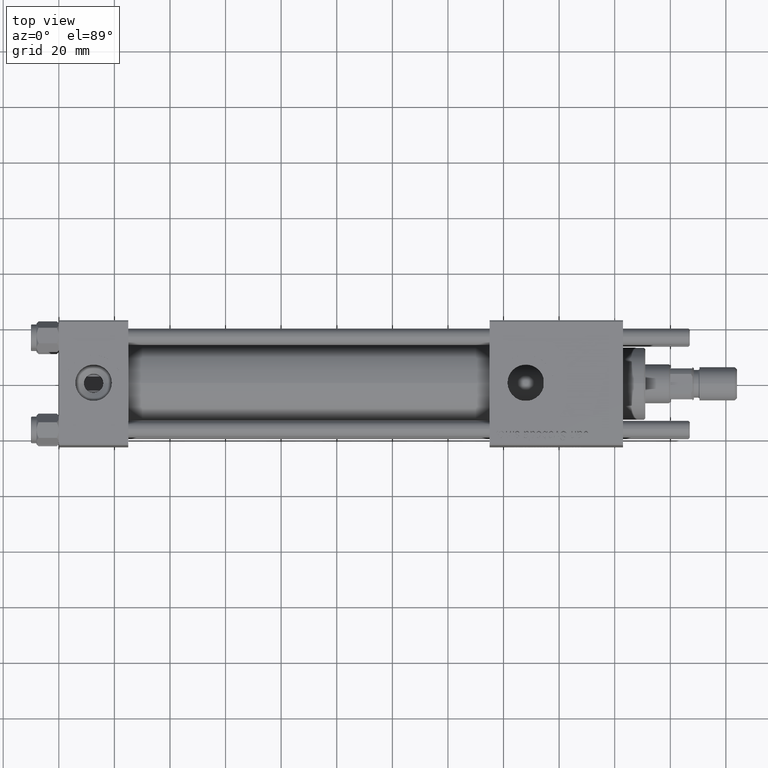
[diagram: clean part render]
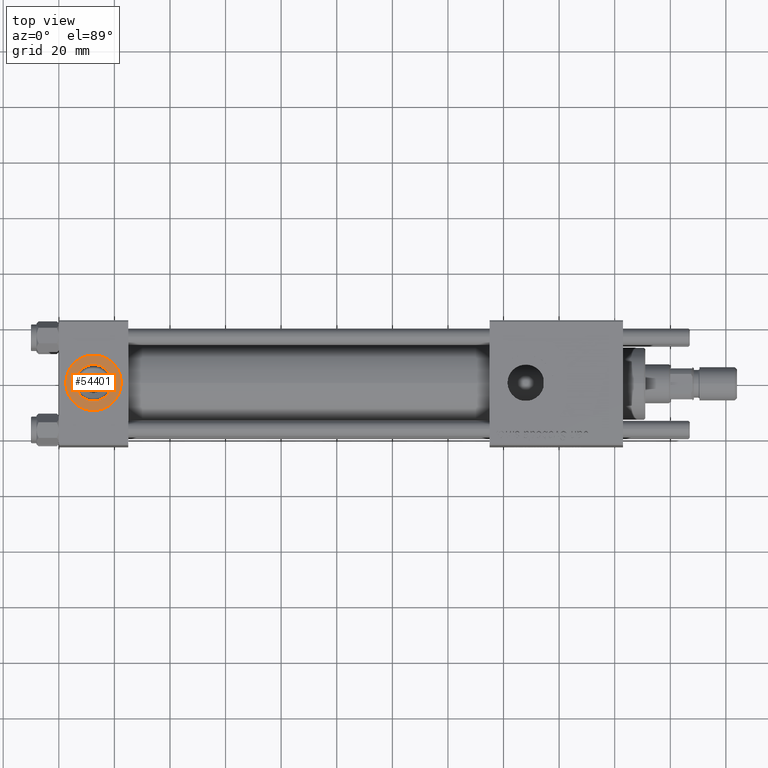
[diagram: same view with one face highlighted and labeled with its STEP entity id]
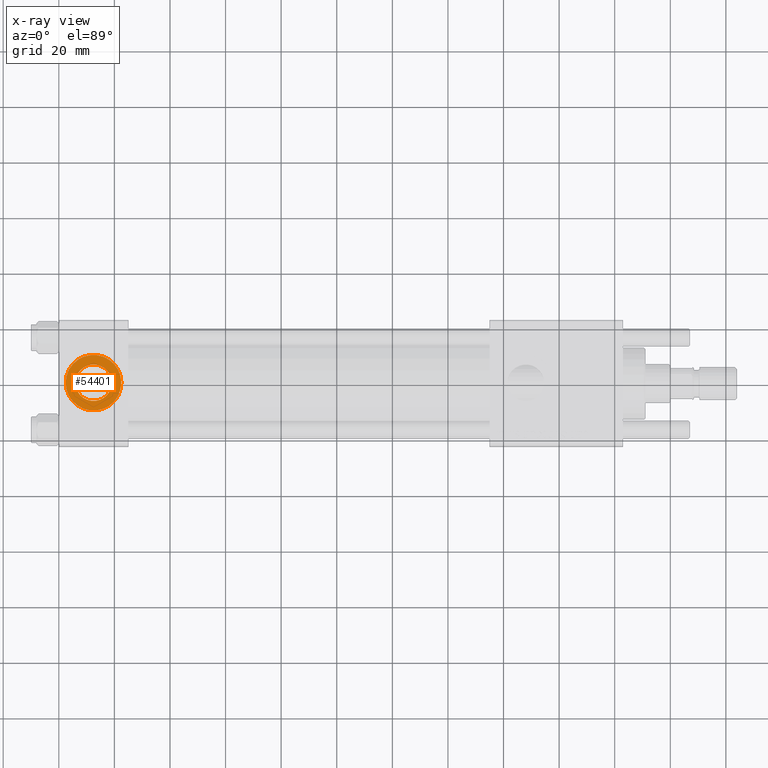
[diagram: x-ray of the same camera — body ghosted, the highlighted face saturated]
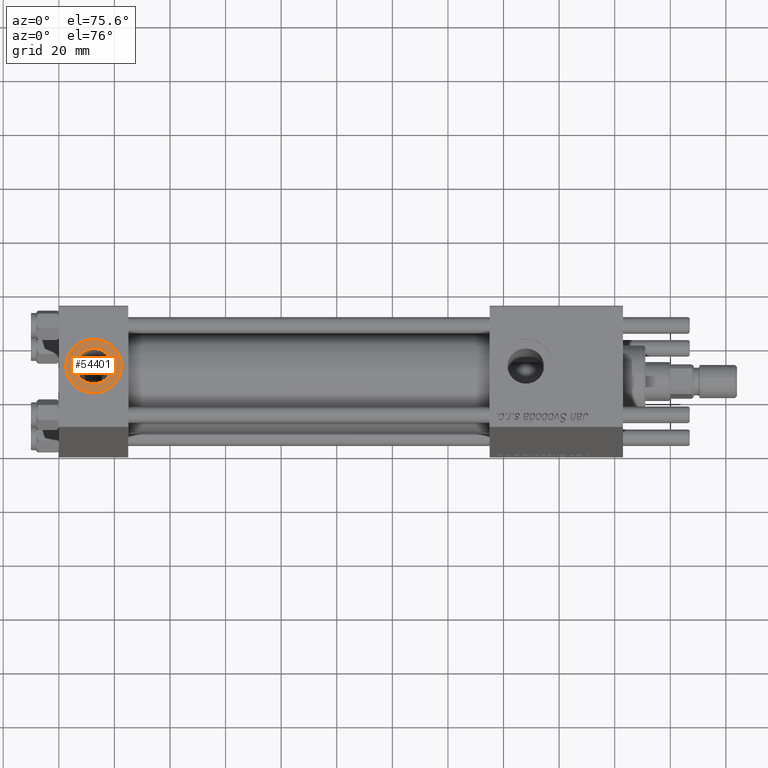
[diagram: same view with one face highlighted and labeled with its STEP entity id]
A machine part, top view. The second image highlights one B-rep face of the part: STEP entity #54401.
The next image is the same camera in x-ray: the body ghosted, the highlighted face saturated — about 0% of this face is hidden behind the body in this view.
A second angle (auxiliary view) of the same face is appended — the face is thin or edge-on in the first view.
In plain terms, the highlighted planar face has unit normal (0, 0, 1).
Its self-contained STEP definition (entity closure, byte-faithful):
#118 = ORIENTED_EDGE ( 'NONE', *, *, #56524, .T. ) ;
#2369 = ORIENTED_EDGE ( 'NONE', *, *, #45049, .T. ) ;
#3661 = CARTESIAN_POINT ( 'NONE',  ( 12.50000000000000000, -1.734723475976807094E-15, 22.30000000000000071 ) ) ;
#3683 = PLANE ( 'NONE',  #7646 ) ;
#3716 = DIRECTION ( 'NONE',  ( 0.000000000000000000, 0.000000000000000000, 1.000000000000000000 ) ) ;
#3729 = AXIS2_PLACEMENT_3D ( 'NONE', #3661, #17112, #9315 ) ;
#5263 = EDGE_LOOP ( 'NONE', ( #2369, #118 ) ) ;
#5288 = ORIENTED_EDGE ( 'NONE', *, *, #12194, .F. ) ;
#7582 = FACE_BOUND ( 'NONE', #35847, .T. ) ;
#7646 = AXIS2_PLACEMENT_3D ( 'NONE', #25774, #16837, #7885 ) ;
#7874 = VERTEX_POINT ( 'NONE', #34575 ) ;
#7885 = DIRECTION ( 'NONE',  ( 1.000000000000000000, 0.000000000000000000, -0.000000000000000000 ) ) ;
#9315 = DIRECTION ( 'NONE',  ( 1.000000000000000000, 0.000000000000000000, 0.000000000000000000 ) ) ;
#10375 = VERTEX_POINT ( 'NONE', #32669 ) ;
#12194 = EDGE_CURVE ( 'NONE', #24673, #7874, #18111, .T. ) ;
#12203 = DIRECTION ( 'NONE',  ( 1.000000000000000000, 0.000000000000000000, 0.000000000000000000 ) ) ;
#14744 = DIRECTION ( 'NONE',  ( 0.000000000000000000, 0.000000000000000000, 1.000000000000000000 ) ) ;
#15984 = CIRCLE ( 'NONE', #31223, 9.999999999999998224 ) ;
#16837 = DIRECTION ( 'NONE',  ( 0.000000000000000000, 0.000000000000000000, 1.000000000000000000 ) ) ;
#17112 = DIRECTION ( 'NONE',  ( 0.000000000000000000, 0.000000000000000000, 1.000000000000000000 ) ) ;
#18111 = CIRCLE ( 'NONE', #35208, 6.579999999999999183 ) ;
#18352 = CARTESIAN_POINT ( 'NONE',  ( 12.50000000000000000, -1.734723475976807094E-15, 22.30000000000000071 ) ) ;
#18517 = ORIENTED_EDGE ( 'NONE', *, *, #51175, .F. ) ;
#21008 = FACE_OUTER_BOUND ( 'NONE', #5263, .T. ) ;
#23081 = DIRECTION ( 'NONE',  ( 1.000000000000000000, 0.000000000000000000, 0.000000000000000000 ) ) ;
#24673 = VERTEX_POINT ( 'NONE', #42837 ) ;
#25774 = CARTESIAN_POINT ( 'NONE',  ( 12.50000000000000000, -1.734723475976807094E-15, 22.30000000000000071 ) ) ;
#31223 = AXIS2_PLACEMENT_3D ( 'NONE', #18352, #3716, #40413 ) ;
#31354 = AXIS2_PLACEMENT_3D ( 'NONE', #36228, #14744, #23081 ) ;
#31554 = VERTEX_POINT ( 'NONE', #57918 ) ;
#32335 = CIRCLE ( 'NONE', #31354, 9.999999999999998224 ) ;
#32669 = CARTESIAN_POINT ( 'NONE',  ( 22.50000000000000000, -1.734723475976807094E-15, 22.30000000000000071 ) ) ;
#34575 = CARTESIAN_POINT ( 'NONE',  ( 5.920000000000002593, -9.289058821378490386E-16, 22.30000000000000071 ) ) ;
#34583 = CARTESIAN_POINT ( 'NONE',  ( 12.50000000000000000, -1.734723475976807094E-15, 22.30000000000000071 ) ) ;
#35208 = AXIS2_PLACEMENT_3D ( 'NONE', #34583, #47708, #12203 ) ;
#35847 = EDGE_LOOP ( 'NONE', ( #5288, #18517 ) ) ;
#36228 = CARTESIAN_POINT ( 'NONE',  ( 12.50000000000000000, -1.734723475976807094E-15, 22.30000000000000071 ) ) ;
#40413 = DIRECTION ( 'NONE',  ( 1.000000000000000000, 0.000000000000000000, 0.000000000000000000 ) ) ;
#41839 = CIRCLE ( 'NONE', #3729, 6.579999999999999183 ) ;
#42837 = CARTESIAN_POINT ( 'NONE',  ( 19.07999999999999829, -1.734723475976807094E-15, 22.30000000000000071 ) ) ;
#45049 = EDGE_CURVE ( 'NONE', #10375, #31554, #15984, .T. ) ;
#47708 = DIRECTION ( 'NONE',  ( 0.000000000000000000, 0.000000000000000000, 1.000000000000000000 ) ) ;
#51175 = EDGE_CURVE ( 'NONE', #7874, #24673, #41839, .T. ) ;
#54401 = ADVANCED_FACE ( 'NONE', ( #7582, #21008 ), #3683, .T. ) ;
#56524 = EDGE_CURVE ( 'NONE', #31554, #10375, #32335, .T. ) ;
#57918 = CARTESIAN_POINT ( 'NONE',  ( 2.500000000000003997, -5.100766768294543310E-16, 22.30000000000000071 ) ) ;